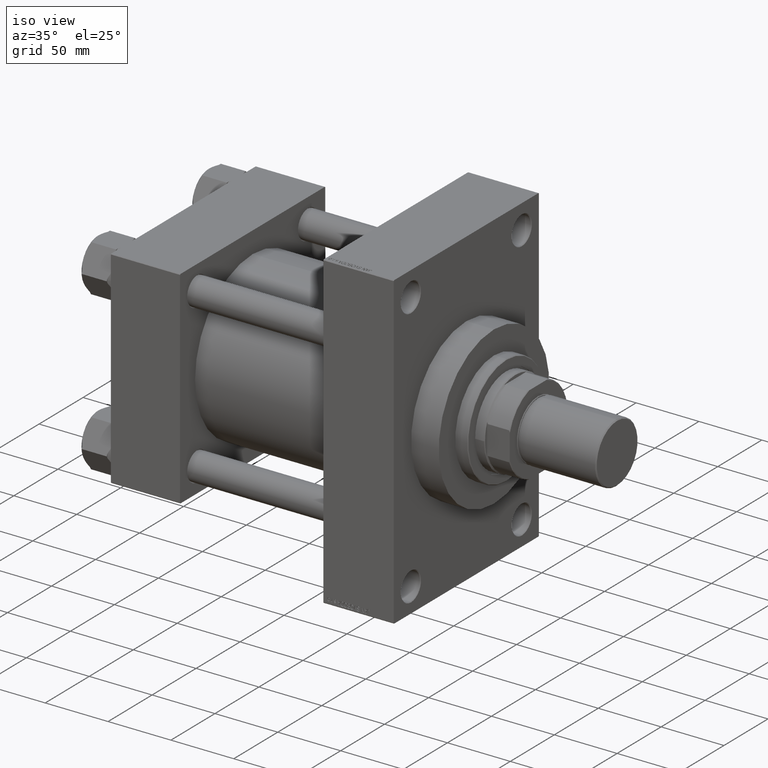
[diagram: clean part render]
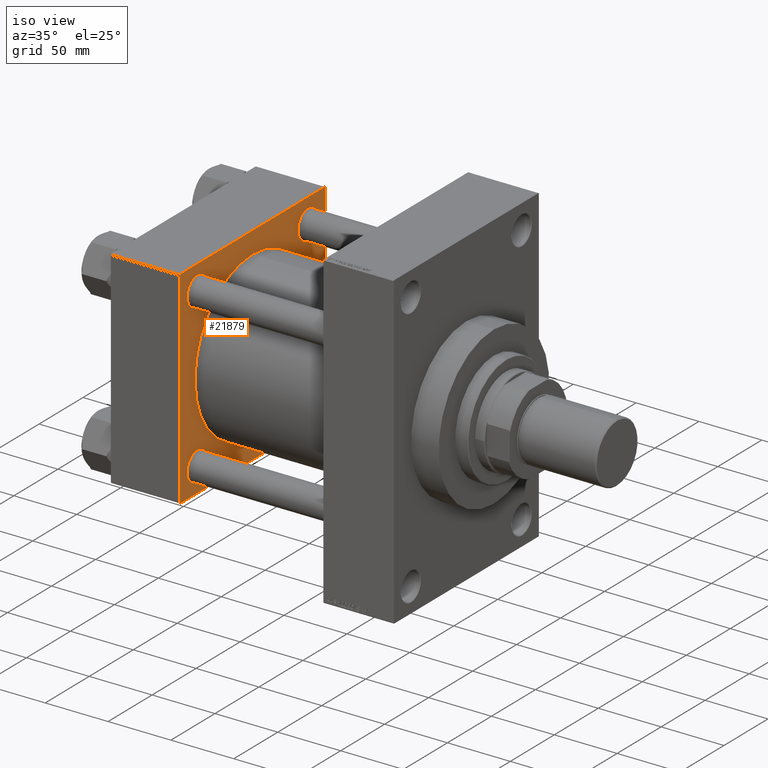
[diagram: same view with one face highlighted and labeled with its STEP entity id]
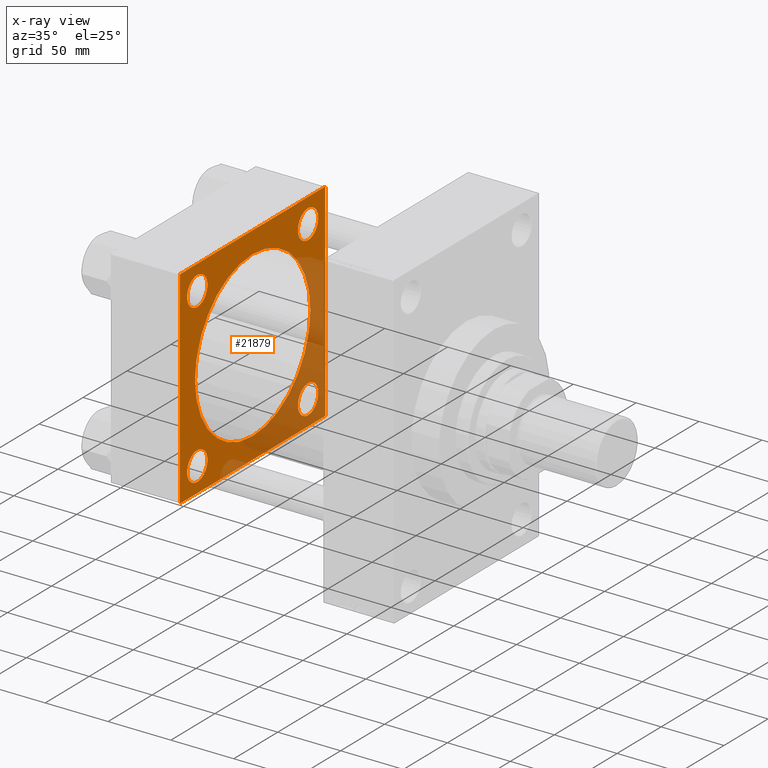
[diagram: x-ray of the same camera — body ghosted, the highlighted face saturated]
A machine part, iso view. The second image highlights one B-rep face of the part: STEP entity #21879.
The next image is the same camera in x-ray: the body ghosted, the highlighted face saturated — about 33% of this face is hidden behind the body in this view.
In plain terms, the highlighted planar face has unit normal (-1, 0, 0).
Its self-contained STEP definition (entity closure, byte-faithful):
#333 = DIRECTION ( 'NONE',  ( 0.000000000000000000, 0.000000000000000000, 1.000000000000000000 ) ) ;
#831 = ORIENTED_EDGE ( 'NONE', *, *, #21502, .T. ) ;
#1302 = CARTESIAN_POINT ( 'NONE',  ( 55.00000000000000000, -82.00000000000000000, -82.50000000000000000 ) ) ;
#1969 = DIRECTION ( 'NONE',  ( -1.000000000000000000, 0.000000000000000000, 0.000000000000000000 ) ) ;
#2224 = VERTEX_POINT ( 'NONE', #23569 ) ;
#2617 = ORIENTED_EDGE ( 'NONE', *, *, #20058, .F. ) ;
#2622 = CIRCLE ( 'NONE', #41526, 11.50000000000001066 ) ;
#2630 = DIRECTION ( 'NONE',  ( 0.000000000000000000, 0.000000000000000000, 1.000000000000000000 ) ) ;
#2710 = DIRECTION ( 'NONE',  ( 0.000000000000000000, -1.000000000000000000, -8.410780489584519171E-17 ) ) ;
#2763 = LINE ( 'NONE', #21524, #36528 ) ;
#3290 = CARTESIAN_POINT ( 'NONE',  ( 55.00000000000000000, 82.50000000000002842, -82.49999999999997158 ) ) ;
#3429 = LINE ( 'NONE', #36078, #43034 ) ;
#3833 = LINE ( 'NONE', #11374, #19558 ) ;
#4153 = ORIENTED_EDGE ( 'NONE', *, *, #34884, .T. ) ;
#4876 = CIRCLE ( 'NONE', #32107, 65.50000000000001421 ) ;
#5345 = CARTESIAN_POINT ( 'NONE',  ( 55.00000000000000000, 62.95000000000000284, -51.44999999999999574 ) ) ;
#5447 = ORIENTED_EDGE ( 'NONE', *, *, #17976, .T. ) ;
#6279 = DIRECTION ( 'NONE',  ( 0.000000000000000000, 0.7071067811865376918, -0.7071067811865574537 ) ) ;
#6321 = VERTEX_POINT ( 'NONE', #35373 ) ;
#6552 = AXIS2_PLACEMENT_3D ( 'NONE', #13079, #34521, #31594 ) ;
#6590 = CIRCLE ( 'NONE', #43824, 11.50000000000001066 ) ;
#6794 = PLANE ( 'NONE',  #20472 ) ;
#7254 = CIRCLE ( 'NONE', #29007, 11.50000000000001066 ) ;
#8946 = CARTESIAN_POINT ( 'NONE',  ( 55.00000000000000000, -62.94999999999998153, 51.45000000000000995 ) ) ;
#9531 = VERTEX_POINT ( 'NONE', #1302 ) ;
#9704 = CARTESIAN_POINT ( 'NONE',  ( 55.00000000000000000, 62.95000000000000284, 62.95000000000000284 ) ) ;
#10161 = DIRECTION ( 'NONE',  ( 0.000000000000000000, 0.000000000000000000, 1.000000000000000000 ) ) ;
#10444 = FACE_BOUND ( 'NONE', #43052, .T. ) ;
#10477 = AXIS2_PLACEMENT_3D ( 'NONE', #41476, #22500, #333 ) ;
#10611 = CARTESIAN_POINT ( 'NONE',  ( 55.00000000000000000, 82.00000000000005684, -82.49999999999997158 ) ) ;
#10830 = CARTESIAN_POINT ( 'NONE',  ( 55.00000000000000000, -82.49999999999997158, 82.00000000000001421 ) ) ;
#10842 = VERTEX_POINT ( 'NONE', #36391 ) ;
#10993 = ORIENTED_EDGE ( 'NONE', *, *, #27921, .T. ) ;
#11374 = CARTESIAN_POINT ( 'NONE',  ( 55.00000000000000000, -82.49999999999997158, 82.50000000000001421 ) ) ;
#11623 = DIRECTION ( 'NONE',  ( 1.000000000000000000, -0.000000000000000000, -0.000000000000000000 ) ) ;
#11925 = ORIENTED_EDGE ( 'NONE', *, *, #26635, .T. ) ;
#12296 = DIRECTION ( 'NONE',  ( 0.000000000000000000, 0.000000000000000000, 1.000000000000000000 ) ) ;
#12605 = VERTEX_POINT ( 'NONE', #37609 ) ;
#12610 = CARTESIAN_POINT ( 'NONE',  ( 55.00000000000000000, 62.95000000000000284, -62.95000000000000284 ) ) ;
#12802 = CARTESIAN_POINT ( 'NONE',  ( 55.00000000000000000, 62.95000000000000284, -74.45000000000001705 ) ) ;
#12807 = ORIENTED_EDGE ( 'NONE', *, *, #24192, .T. ) ;
#13079 = CARTESIAN_POINT ( 'NONE',  ( 55.00000000000000000, 62.95000000000000284, -62.95000000000000284 ) ) ;
#13109 = ORIENTED_EDGE ( 'NONE', *, *, #40085, .T. ) ;
#13622 = FACE_BOUND ( 'NONE', #22503, .T. ) ;
#13645 = DIRECTION ( 'NONE',  ( 0.000000000000000000, 0.000000000000000000, 1.000000000000000000 ) ) ;
#13675 = EDGE_CURVE ( 'NONE', #20892, #12605, #2763, .T. ) ;
#13968 = DIRECTION ( 'NONE',  ( -0.000000000000000000, 0.7071067811865474617, 0.7071067811865474617 ) ) ;
#14044 = VERTEX_POINT ( 'NONE', #24100 ) ;
#14084 = LINE ( 'NONE', #28464, #37006 ) ;
#14127 = VERTEX_POINT ( 'NONE', #5345 ) ;
#14184 = VERTEX_POINT ( 'NONE', #36259 ) ;
#14319 = DIRECTION ( 'NONE',  ( 1.000000000000000000, -0.000000000000000000, -0.000000000000000000 ) ) ;
#15670 = EDGE_CURVE ( 'NONE', #2224, #41466, #42055, .T. ) ;
#16780 = ORIENTED_EDGE ( 'NONE', *, *, #32892, .T. ) ;
#17386 = EDGE_LOOP ( 'NONE', ( #2617, #18761, #47573, #37481, #831, #44811, #5447, #34100 ) ) ;
#17405 = VECTOR ( 'NONE', #23472, 1000.000000000000114 ) ;
#17976 = EDGE_CURVE ( 'NONE', #46341, #31616, #3833, .T. ) ;
#17991 = EDGE_LOOP ( 'NONE', ( #39022, #13109 ) ) ;
#18252 = DIRECTION ( 'NONE',  ( -1.000000000000000000, 0.000000000000000000, 0.000000000000000000 ) ) ;
#18407 = LINE ( 'NONE', #3290, #42193 ) ;
#18524 = ORIENTED_EDGE ( 'NONE', *, *, #48041, .T. ) ;
#18761 = ORIENTED_EDGE ( 'NONE', *, *, #13675, .T. ) ;
#18839 = AXIS2_PLACEMENT_3D ( 'NONE', #35465, #42779, #31081 ) ;
#19113 = LINE ( 'NONE', #41500, #17405 ) ;
#19558 = VECTOR ( 'NONE', #26248, 1000.000000000000000 ) ;
#20058 = EDGE_CURVE ( 'NONE', #20892, #9531, #18407, .T. ) ;
#20472 = AXIS2_PLACEMENT_3D ( 'NONE', #36749, #18252, #12296 ) ;
#20892 = VERTEX_POINT ( 'NONE', #10611 ) ;
#21150 = DIRECTION ( 'NONE',  ( -1.000000000000000000, 0.000000000000000000, 0.000000000000000000 ) ) ;
#21163 = CIRCLE ( 'NONE', #18839, 11.50000000000001066 ) ;
#21502 = EDGE_CURVE ( 'NONE', #40715, #14044, #3429, .T. ) ;
#21524 = CARTESIAN_POINT ( 'NONE',  ( 55.00000000000000000, 82.50000000000002842, -82.00000000000000000 ) ) ;
#21652 = DIRECTION ( 'NONE',  ( -0.000000000000000000, -0.7071067811865474617, -0.7071067811865474617 ) ) ;
#21879 = ADVANCED_FACE ( 'NONE', ( #13622, #43815, #25559, #47957, #10444, #25323 ), #6794, .F. ) ;
#22355 = VERTEX_POINT ( 'NONE', #38292 ) ;
#22500 = DIRECTION ( 'NONE',  ( -1.000000000000000000, 0.000000000000000000, 0.000000000000000000 ) ) ;
#22503 = EDGE_LOOP ( 'NONE', ( #12807, #18524 ) ) ;
#22739 = CARTESIAN_POINT ( 'NONE',  ( 55.00000000000000000, 62.95000000000000284, 62.95000000000000284 ) ) ;
#23472 = DIRECTION ( 'NONE',  ( 0.000000000000000000, -0.7071067811865474617, 0.7071067811865474617 ) ) ;
#23569 = CARTESIAN_POINT ( 'NONE',  ( 54.99999999999999289, -2.602085213965210642E-15, 65.50000000000001421 ) ) ;
#24100 = CARTESIAN_POINT ( 'NONE',  ( 55.00000000000000000, -81.99999999999997158, 82.50000000000001421 ) ) ;
#24188 = AXIS2_PLACEMENT_3D ( 'NONE', #36740, #11623, #30372 ) ;
#24192 = EDGE_CURVE ( 'NONE', #14184, #10842, #2622, .T. ) ;
#25323 = FACE_OUTER_BOUND ( 'NONE', #17386, .T. ) ;
#25559 = FACE_BOUND ( 'NONE', #44162, .T. ) ;
#26032 = LINE ( 'NONE', #29441, #41664 ) ;
#26248 = DIRECTION ( 'NONE',  ( 0.000000000000000000, -1.682156097916903588E-16, -1.000000000000000000 ) ) ;
#26635 = EDGE_CURVE ( 'NONE', #31980, #6321, #31481, .T. ) ;
#27921 = EDGE_CURVE ( 'NONE', #47156, #14127, #33768, .T. ) ;
#27962 = DIRECTION ( 'NONE',  ( 0.000000000000000000, 0.000000000000000000, 1.000000000000000000 ) ) ;
#28207 = CARTESIAN_POINT ( 'NONE',  ( 55.00000000000000000, -82.00000000000000000, -82.50000000000000000 ) ) ;
#28464 = CARTESIAN_POINT ( 'NONE',  ( 55.00000000000000000, -82.49999999999997158, 82.00000000000001421 ) ) ;
#29007 = AXIS2_PLACEMENT_3D ( 'NONE', #9704, #21150, #2630 ) ;
#29441 = CARTESIAN_POINT ( 'NONE',  ( 55.00000000000000000, 82.50000000000002842, 82.50000000000002842 ) ) ;
#30372 = DIRECTION ( 'NONE',  ( 0.000000000000000000, 0.000000000000000000, 1.000000000000000000 ) ) ;
#31063 = EDGE_CURVE ( 'NONE', #14044, #46341, #14084, .T. ) ;
#31081 = DIRECTION ( 'NONE',  ( 0.000000000000000000, 0.000000000000000000, 1.000000000000000000 ) ) ;
#31481 = CIRCLE ( 'NONE', #10477, 11.50000000000001066 ) ;
#31594 = DIRECTION ( 'NONE',  ( 0.000000000000000000, 0.000000000000000000, 1.000000000000000000 ) ) ;
#31616 = VERTEX_POINT ( 'NONE', #41523 ) ;
#31908 = EDGE_CURVE ( 'NONE', #22355, #12605, #26032, .T. ) ;
#31980 = VERTEX_POINT ( 'NONE', #8946 ) ;
#32107 = AXIS2_PLACEMENT_3D ( 'NONE', #41755, #14319, #36963 ) ;
#32892 = EDGE_CURVE ( 'NONE', #14127, #47156, #39363, .T. ) ;
#33768 = CIRCLE ( 'NONE', #6552, 11.50000000000001066 ) ;
#33800 = DIRECTION ( 'NONE',  ( 0.000000000000000000, 0.000000000000000000, -1.000000000000000000 ) ) ;
#34100 = ORIENTED_EDGE ( 'NONE', *, *, #41142, .T. ) ;
#34521 = DIRECTION ( 'NONE',  ( -1.000000000000000000, 0.000000000000000000, 0.000000000000000000 ) ) ;
#34884 = EDGE_CURVE ( 'NONE', #6321, #31980, #21163, .T. ) ;
#35264 = DIRECTION ( 'NONE',  ( -1.000000000000000000, 0.000000000000000000, 0.000000000000000000 ) ) ;
#35282 = CARTESIAN_POINT ( 'NONE',  ( 55.00000000000000000, 62.95000000000000284, 51.44999999999999574 ) ) ;
#35334 = CARTESIAN_POINT ( 'NONE',  ( 55.00000000000000000, -62.94999999999998153, -62.95000000000001705 ) ) ;
#35373 = CARTESIAN_POINT ( 'NONE',  ( 55.00000000000000000, -62.94999999999998153, 74.45000000000003126 ) ) ;
#35465 = CARTESIAN_POINT ( 'NONE',  ( 55.00000000000000000, -62.94999999999998153, 62.95000000000001705 ) ) ;
#35989 = EDGE_CURVE ( 'NONE', #42057, #47575, #7254, .T. ) ;
#36020 = EDGE_CURVE ( 'NONE', #41466, #2224, #4876, .T. ) ;
#36078 = CARTESIAN_POINT ( 'NONE',  ( 55.00000000000000000, 82.50000000000002842, 82.50000000000002842 ) ) ;
#36259 = CARTESIAN_POINT ( 'NONE',  ( 55.00000000000000000, -62.94999999999998153, -74.45000000000003126 ) ) ;
#36391 = CARTESIAN_POINT ( 'NONE',  ( 55.00000000000000000, -62.94999999999998153, -51.45000000000000995 ) ) ;
#36528 = VECTOR ( 'NONE', #13968, 1000.000000000000114 ) ;
#36740 = CARTESIAN_POINT ( 'NONE',  ( 54.99999999999999289, -2.602085213965210642E-15, 0.000000000000000000 ) ) ;
#36749 = CARTESIAN_POINT ( 'NONE',  ( 55.00000000000000000, 0.000000000000000000, 0.000000000000000000 ) ) ;
#36963 = DIRECTION ( 'NONE',  ( 0.000000000000000000, 0.000000000000000000, 1.000000000000000000 ) ) ;
#37006 = VECTOR ( 'NONE', #21652, 1000.000000000000114 ) ;
#37481 = ORIENTED_EDGE ( 'NONE', *, *, #41741, .T. ) ;
#37609 = CARTESIAN_POINT ( 'NONE',  ( 55.00000000000000000, 82.50000000000002842, -82.00000000000000000 ) ) ;
#37822 = CIRCLE ( 'NONE', #40172, 11.50000000000001066 ) ;
#38036 = ORIENTED_EDGE ( 'NONE', *, *, #36020, .F. ) ;
#38292 = CARTESIAN_POINT ( 'NONE',  ( 55.00000000000000000, 82.50000000000002842, 82.00000000000005684 ) ) ;
#38474 = ORIENTED_EDGE ( 'NONE', *, *, #15670, .F. ) ;
#38919 = LINE ( 'NONE', #28207, #42294 ) ;
#39022 = ORIENTED_EDGE ( 'NONE', *, *, #35989, .T. ) ;
#39363 = CIRCLE ( 'NONE', #45719, 11.50000000000001066 ) ;
#40085 = EDGE_CURVE ( 'NONE', #47575, #42057, #6590, .T. ) ;
#40172 = AXIS2_PLACEMENT_3D ( 'NONE', #47490, #43834, #40180 ) ;
#40180 = DIRECTION ( 'NONE',  ( 0.000000000000000000, 0.000000000000000000, 1.000000000000000000 ) ) ;
#40715 = VERTEX_POINT ( 'NONE', #43596 ) ;
#41142 = EDGE_CURVE ( 'NONE', #31616, #9531, #38919, .T. ) ;
#41258 = DIRECTION ( 'NONE',  ( -1.000000000000000000, 0.000000000000000000, 0.000000000000000000 ) ) ;
#41466 = VERTEX_POINT ( 'NONE', #47143 ) ;
#41476 = CARTESIAN_POINT ( 'NONE',  ( 55.00000000000000000, -62.94999999999998153, 62.95000000000001705 ) ) ;
#41500 = CARTESIAN_POINT ( 'NONE',  ( 55.00000000000000000, 82.00000000000005684, 82.50000000000002842 ) ) ;
#41523 = CARTESIAN_POINT ( 'NONE',  ( 55.00000000000000000, -82.50000000000000000, -81.99999999999998579 ) ) ;
#41526 = AXIS2_PLACEMENT_3D ( 'NONE', #35334, #1969, #13645 ) ;
#41664 = VECTOR ( 'NONE', #33800, 1000.000000000000000 ) ;
#41741 = EDGE_CURVE ( 'NONE', #22355, #40715, #19113, .T. ) ;
#41755 = CARTESIAN_POINT ( 'NONE',  ( 54.99999999999999289, -2.602085213965210642E-15, 0.000000000000000000 ) ) ;
#41972 = CARTESIAN_POINT ( 'NONE',  ( 55.00000000000000000, 62.95000000000000284, 74.45000000000001705 ) ) ;
#42055 = CIRCLE ( 'NONE', #24188, 65.50000000000001421 ) ;
#42057 = VERTEX_POINT ( 'NONE', #35282 ) ;
#42193 = VECTOR ( 'NONE', #47875, 1000.000000000000000 ) ;
#42294 = VECTOR ( 'NONE', #6279, 999.9999999999998863 ) ;
#42409 = EDGE_LOOP ( 'NONE', ( #10993, #16780 ) ) ;
#42779 = DIRECTION ( 'NONE',  ( -1.000000000000000000, 0.000000000000000000, 0.000000000000000000 ) ) ;
#43034 = VECTOR ( 'NONE', #2710, 1000.000000000000000 ) ;
#43052 = EDGE_LOOP ( 'NONE', ( #38474, #38036 ) ) ;
#43596 = CARTESIAN_POINT ( 'NONE',  ( 55.00000000000000000, 82.00000000000005684, 82.50000000000002842 ) ) ;
#43815 = FACE_BOUND ( 'NONE', #42409, .T. ) ;
#43824 = AXIS2_PLACEMENT_3D ( 'NONE', #22739, #41258, #10161 ) ;
#43834 = DIRECTION ( 'NONE',  ( -1.000000000000000000, 0.000000000000000000, 0.000000000000000000 ) ) ;
#44162 = EDGE_LOOP ( 'NONE', ( #11925, #4153 ) ) ;
#44811 = ORIENTED_EDGE ( 'NONE', *, *, #31063, .T. ) ;
#45719 = AXIS2_PLACEMENT_3D ( 'NONE', #12610, #35264, #27962 ) ;
#46341 = VERTEX_POINT ( 'NONE', #10830 ) ;
#47143 = CARTESIAN_POINT ( 'NONE',  ( 54.99999999999999289, 5.419351320449953395E-15, -65.50000000000001421 ) ) ;
#47156 = VERTEX_POINT ( 'NONE', #12802 ) ;
#47490 = CARTESIAN_POINT ( 'NONE',  ( 55.00000000000000000, -62.94999999999998153, -62.95000000000001705 ) ) ;
#47573 = ORIENTED_EDGE ( 'NONE', *, *, #31908, .F. ) ;
#47575 = VERTEX_POINT ( 'NONE', #41972 ) ;
#47875 = DIRECTION ( 'NONE',  ( 0.000000000000000000, -1.000000000000000000, -1.682156097916903588E-16 ) ) ;
#47957 = FACE_BOUND ( 'NONE', #17991, .T. ) ;
#48041 = EDGE_CURVE ( 'NONE', #10842, #14184, #37822, .T. ) ;